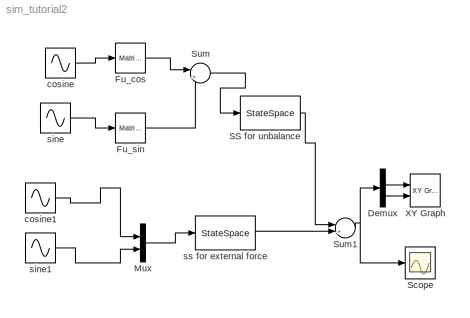
MODEL sim_tutorial2
KIND model
BLOCK [Demux] Demux
  Outputs = 2
  Ports = [1, 2]
  SID = 1
BLOCK [Reference] Fu_cos  REF=simulink3/Math/Matrix\nGain
  K = Rot.Fu_cos
  Ports = [1, 1]
  SID = 2
  SourceBlock = simulink3/Math/Matrix\nGain
  SourceProductBaseCode = SL
  SourceProductName = Simulink
  SourceType = Matrix Gain
BLOCK [Reference] Fu_sin  REF=simulink3/Math/Matrix\nGain
  K = Rot.Fu_sin
  Ports = [1, 1]
  SID = 3
  SourceBlock = simulink3/Math/Matrix\nGain
  SourceProductBaseCode = SL
  SourceProductName = Simulink
  SourceType = Matrix Gain
BLOCK [Mux] Mux
  DisplayOption = bar
  Inputs = 2
  Ports = [2, 1]
  SID = 4
BLOCK [StateSpace] SS for unbalance
  A = a
  B = bu
  C = c
  D = du
  InitialCondition = 0
  Ports = [1, 1]
  SID = 5
BLOCK [Scope] Scope
  Floating = off
  NumInputPorts = 1
  Ports = [1]
  SID = 6
  ScopeSpecificationString = C++SS(StrPVP('Location','[188, 355, 512, 594]'),StrPVP('Open','on'),StrPVP('TickLabels','OneTimeTick'),StrPVP('ZoomMode','on'),MxPVP('AxesTitles',54,'struct(''axes1'',''%<SignalLabel>'')'),StrPVP('Grid','on'),StrPVP('TimeRange','auto'),StrPVP('YMin','-0.01'),StrPVP('YMax','0.0125'),StrPVP('SaveToWorkspace','off'),StrPVP('SaveName','ScopeData'),StrPVP('DataFormat','StructureWithTime'),StrPVP('Limit...<+138ch>
BLOCK [Sum] Sum
  IconShape = round
  Inputs = |++
  Ports = [2, 1]
  SID = 7
BLOCK [Sum] Sum1
  IconShape = round
  Inputs = |++
  Ports = [2, 1]
  SID = 8
BLOCK [Reference] XY Graph  REF=simulink3/Sinks/XY Graph
  Ports = [2]
  SID = 9
  SourceBlock = simulink3/Sinks/XY Graph
  SourceProductBaseCode = SL
  SourceProductName = Simulink
  SourceType = XY scope.
  st = -1
  xmax = 1e-2
  xmin = -1e-2
  ymax = 1e-2
  ymin = -1e-2
BLOCK [Sin] cosine
  Frequency = Rot.W
  Phase = pi/2
  Ports = [0, 1]
  SID = 10
  SampleTime = 0
BLOCK [Sin] cosine1
  Frequency = 1.21
  Phase = pi/2
  Ports = [0, 1]
  SID = 11
  SampleTime = 0
BLOCK [Sin] sine
  Frequency = Rot.W
  Ports = [0, 1]
  SID = 12
  SampleTime = 0
BLOCK [Sin] sine1
  Ports = [0, 1]
  SID = 13
  SampleTime = 0
BLOCK [StateSpace] ss for external force
  A = a
  B = b
  C = c
  D = d
  InitialCondition = 0
  Ports = [1, 1]
  SID = 14
LINE Demux:1 -> XY Graph:1
LINE Demux:2 -> XY Graph:2
LINE Fu_cos:1 -> Sum:1
LINE Fu_sin:1 -> Sum:2
LINE Mux:1 -> ss for external force:1
LINE SS for unbalance:1 -> Sum1:1
NET Sum1:1 -> Demux:1, Scope:1
LINE Sum:1 -> SS for unbalance:1
LINE cosine1:1 -> Mux:1
LINE cosine:1 -> Fu_cos:1
LINE sine1:1 -> Mux:2
LINE sine:1 -> Fu_sin:1
LINE ss for external force:1 -> Sum1:2
note: NET lines group one-source signal fan-out (src -> all destinations, sorted); 1:1 wires keep LINE
